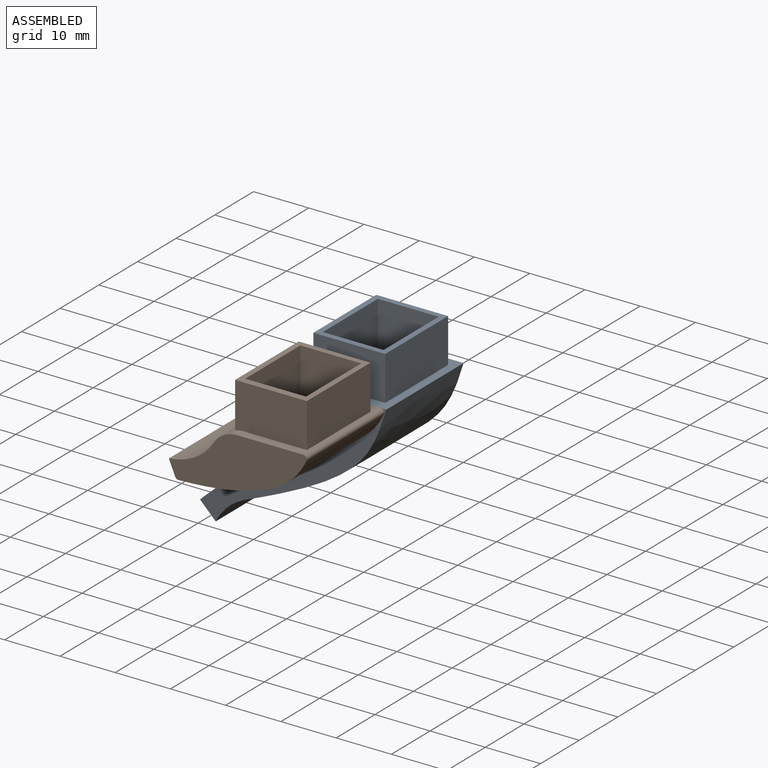
[diagram: assembled view]
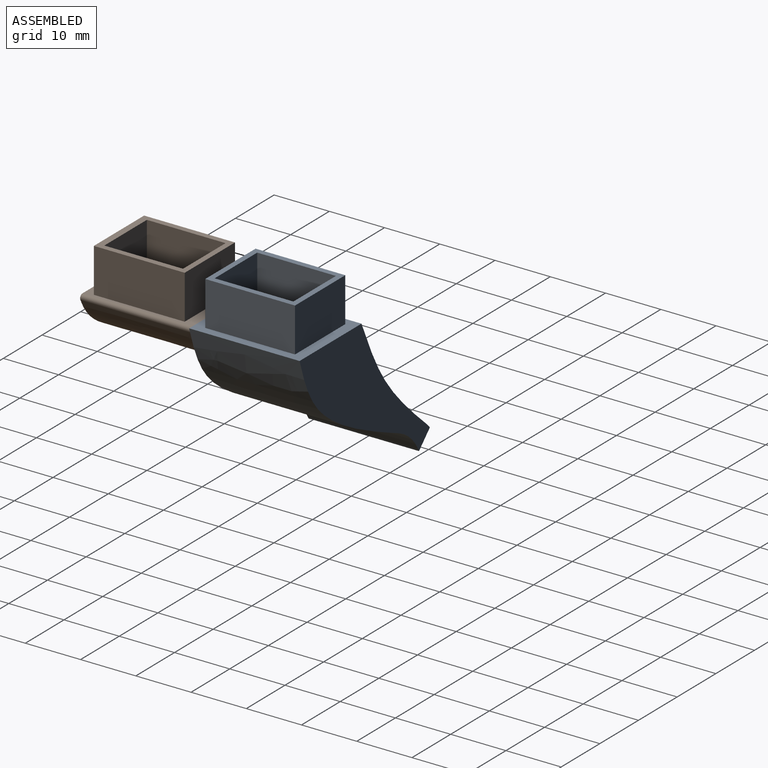
[diagram: assembled view, second angle]
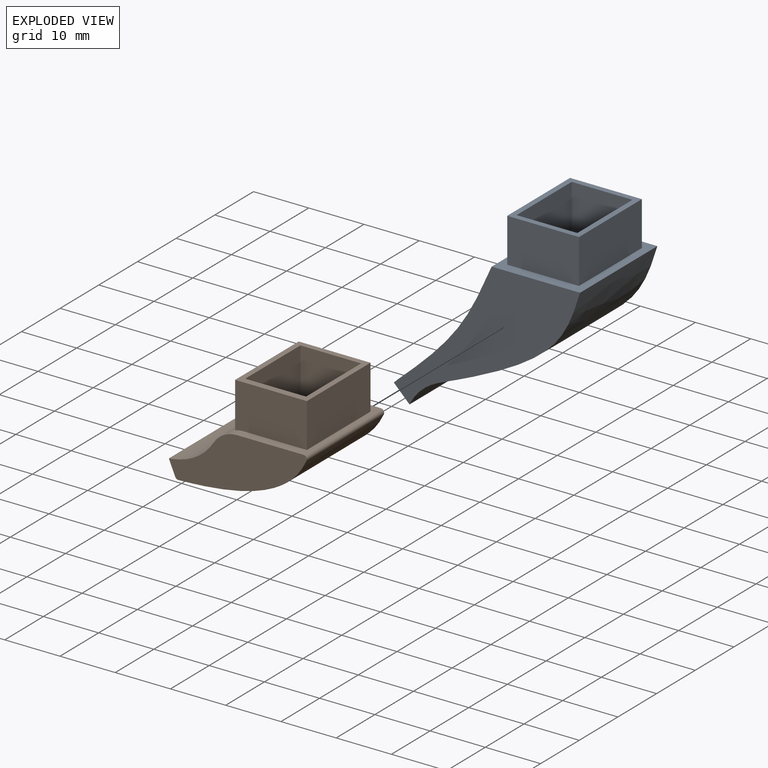
[diagram: exploded view]
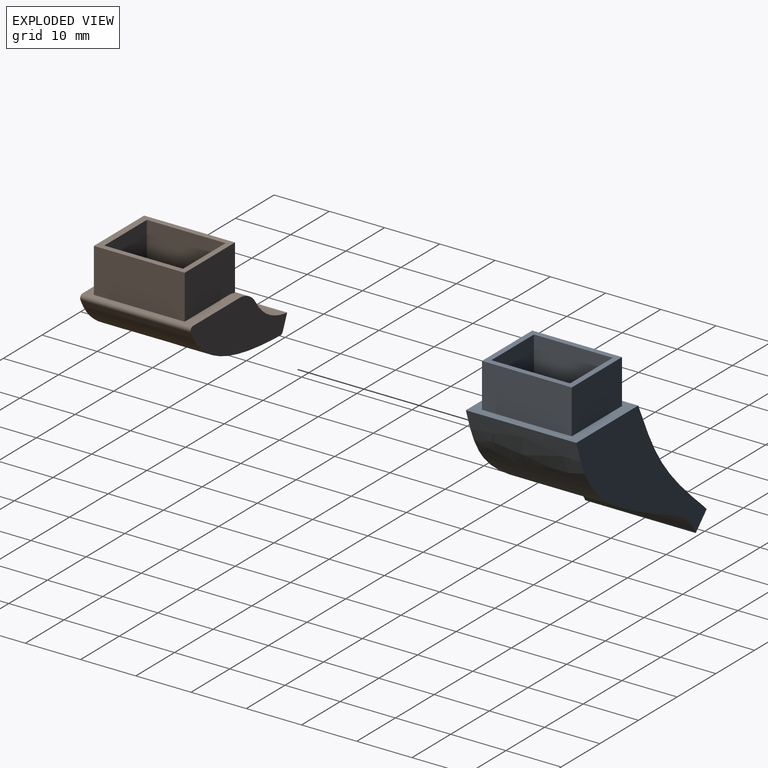
[diagram: exploded view, second angle]
ASSEMBLY  parts=2 mates=2
PART A: 29 faces, bbox 35.7x22x36.5 mm
  f0: plane 7.93x1.88mm, normal (0,0,-1), area 14.9mm2, adj f16,f25,f27,f28
  f1: plane 20x2.83mm, normal (-0.71,0,-0.71), area 44.8mm2, adj f3,f5,f7,f8,f16,f18,f20,f21
  f2: plane 20x16mm, normal (0,0,1), area 108.8mm2, adj f3,f4,f5,f6,f9,f11,f12,f13
  f3: plane 33.71x26.54mm, normal (0,1,0), area 319.6mm2, adj f1,f2,f4,f6,f7,f8,f14
  f4: bspline ~29x23mm, area 703.7mm2, adj f2,f3,f5,f14
  f5: plane 33.71x26.54mm, normal (0,-1,0), area 319.6mm2, adj f1,f2,f4,f6,f7,f8,f14
  f6: bspline ~23x20mm, area 578.9mm2, adj f2,f3,f5,f7
  f7: plane 20x0.71mm, normal (-0.71,0,0.71), area 20mm2, adj f1,f3,f5,f6
  f8: plane 20x0.35mm, normal (0.88,0,-0.47), area 7.9mm2, adj f1,f3,f5,f14
  f9: plane 13x8mm, normal (0,-1,0), area 104mm2, adj f2,f10,f11,f12
  f10: plane 16.25x13mm, normal (0,0,1), area 54.5mm2, adj f9,f11,f12,f13,f22,f23,f24,f25
  f11: plane 16.25x8mm, normal (-1,0,0), area 130mm2, adj f2,f9,f10,f13
  f12: plane 16.25x8mm, normal (1,0,0), area 130mm2, adj f2,f9,f10,f13
  f13: plane 13x8mm, normal (0,1,0), area 104mm2, adj f2,f10,f11,f12
  f14: cylinder r=10mm len=20mm, axis (0,-1,0), area 137.9mm2, adj f3,f4,f5,f8
  f15: plane 7.93x1.88mm, normal (0,0,-1), area 14.9mm2, adj f18,f22,f27,f28
  f16: plane 31.38x25.36mm, normal (0,-1,0), area 229.5mm2, adj f0,f1,f17,f19,f20,f21,f26,f27
  f17: offset ~31x25mm, area 540.7mm2, adj f16,f18,f26,f28
  f18: plane 31.38x25.36mm, normal (0,1,0), area 229.5mm2, adj f1,f15,f17,f19,f20,f21,f26,f27
  f19: offset ~25x22mm, area 459mm2, adj f16,f18,f20,f27
  f20: plane 18x0.69mm, normal (0.71,0,-0.71), area 17.5mm2, adj f1,f16,f18,f19
  f21: plane 18x0.08mm, normal (-0.88,0,0.47), area 1.6mm2, adj f1,f16,f18,f26
  f22: plane 11x9.92mm, normal (0,1,0), area 99.6mm2, adj f10,f15,f23,f24,f27,f28
  f23: plane 14.25x9.2mm, normal (1,0,0), area 131.1mm2, adj f10,f22,f25,f27
  f24: plane 14.25x9.92mm, normal (-1,0,0), area 141.4mm2, adj f10,f22,f25,f28
  f25: plane 11x9.92mm, normal (0,-1,0), area 99.6mm2, adj f0,f10,f23,f24,f27,f28
  f26: cylinder r=11mm len=18mm, axis (0,-1,0), area 136.6mm2, adj f16,f17,f18,f21
  f27: cylinder r=5mm len=18mm, axis (0,1,0), area 82.5mm2, adj f0,f15,f16,f18,f19,f22,f23,f25
  f28: cylinder r=2mm len=18mm, axis (0,-1,0), area 41.6mm2, adj f0,f15,f16,f17,f18,f22,f24,f25
PART B: 27 faces, bbox 50.7x22x21.2 mm
  f0: plane 25.54x10.93mm, normal (0,1,0), area 152.3mm2, adj f1,f3,f11,f22,f23,f24,f25
  f1: bspline ~39.47x20mm, area 526.5mm2, adj f0,f2,f23,f24
  f2: plane 25.54x10.93mm, normal (0,-1,0), area 152.3mm2, adj f1,f3,f11,f22,f23,f24,f25
  f3: bspline ~32.34x20mm, area 195.2mm2, adj f0,f2,f22,f25
  f4: offset ~41.89x22mm, area 406.3mm2, adj f6,f8,f16,f22
  f5: offset ~34.66x22mm, area 199.8mm2, adj f7,f9,f16,f22
  f6: bspline ~24.46x9.25mm, area 38.3mm2, adj f4,f7,f10,f16,f22
  f7: bspline ~11.81x9.36mm, area 19.6mm2, adj f5,f6,f10,f16,f22
  f8: bspline ~24.46x9.25mm, area 38.3mm2, adj f4,f9,f16,f17,f22
  f9: bspline ~11.81x9.36mm, area 19.6mm2, adj f5,f8,f16,f17,f22
  f10: plane 18.24x7.08mm, normal (0,1,0), area 64mm2, adj f6,f7,f16
  f11: plane 20x12.03mm, normal (0,0,1), area 51.8mm2, adj f0,f2,f14,f15,f24,f25,f26
  f12: plane 16.45x13mm, normal (0,0,1), area 57.1mm2, adj f13,f14,f15,f18,f19,f20,f21,f26
  f13: plane 16.45x8.24mm, normal (-1,0,0), area 135.5mm2, adj f12,f15,f25,f26
  f14: plane 16.45x8mm, normal (1,0,0), area 131.6mm2, adj f11,f12,f15,f26
  f15: plane 13x8.24mm, normal (0,1,0), area 104.1mm2, adj f11,f12,f13,f14,f25
  f16: plane 18.24x14.02mm, normal (0,0,-1), area 90.2mm2, adj f4,f5,f6,f7,f8,f9,f10,f17
  f17: plane 18.24x7.08mm, normal (0,-1,0), area 64mm2, adj f8,f9,f16
  f18: plane 11x9mm, normal (0,1,0), area 99mm2, adj f12,f16,f19,f20
  f19: plane 14.25x9mm, normal (1,0,0), area 128.2mm2, adj f12,f16,f18,f21
  f20: plane 14.25x9mm, normal (-1,0,0), area 128.2mm2, adj f12,f16,f18,f21
  f21: plane 11x9mm, normal (0,-1,0), area 99mm2, adj f12,f16,f19,f20
  f22: plane 20.12x2.83mm, normal (-0.92,0,-0.39), area 37.5mm2, adj f0,f2,f3,f4,f5,f6,f7,f8
  f23: cylinder r=0.6mm len=20mm, axis (0,-1,0), area 14.4mm2, adj f0,f1,f2,f22
  f24: cylinder r=0.6mm len=20mm, axis (0,-1,0), area 24.2mm2, adj f0,f1,f2,f11
  f25: cylinder r=5mm len=20mm, axis (0,1,0), area 75.6mm2, adj f0,f2,f3,f11,f13,f15,f26
  f26: plane 13x8.24mm, normal (0,-1,0), area 104.1mm2, adj f11,f12,f13,f14,f25
PLACE A t=(45.83,20.33,-28.82)mm
PLACE B t=(45.8,0.33,-28.82)mm
MATE parallel A.f5 <-> B.f0  axis (0,-1,0) through (38.88,10.33,-39.16)mm
MATE planar A.f5 <-> B.f0  axis (0,-1,0) through (38.88,10.33,-39.16)mm
